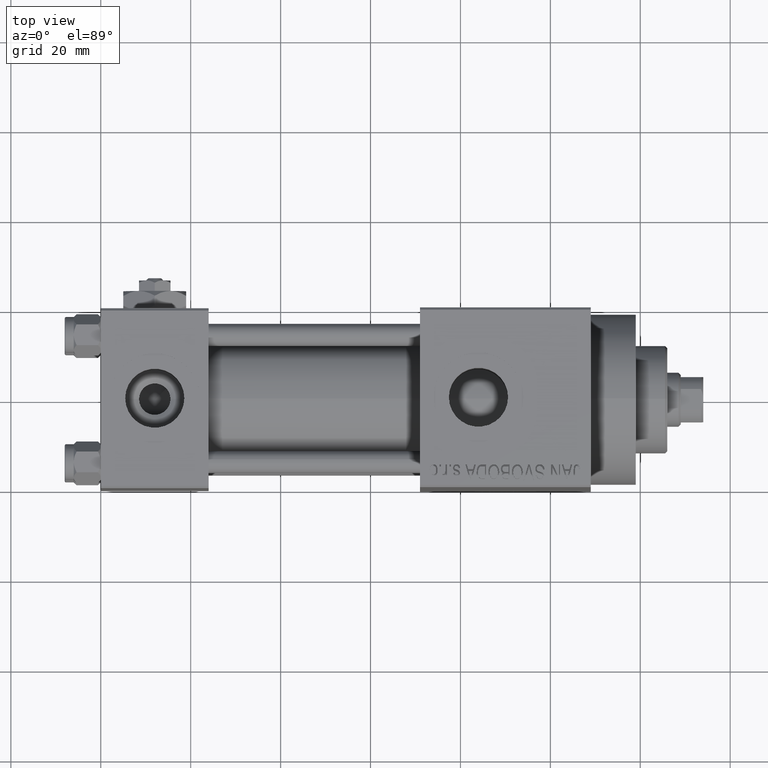
[diagram: clean part render]
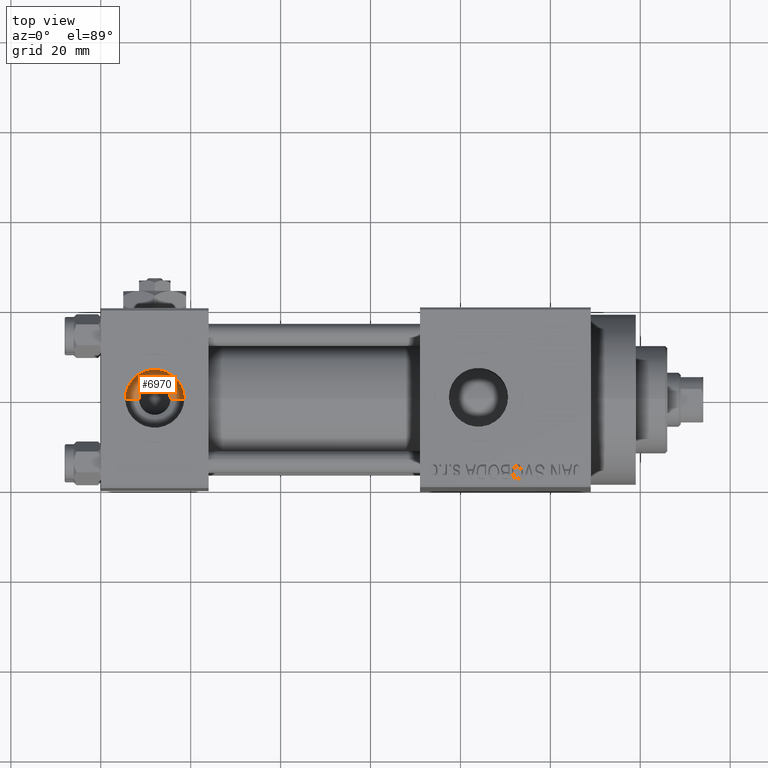
[diagram: same view with one face highlighted and labeled with its STEP entity id]
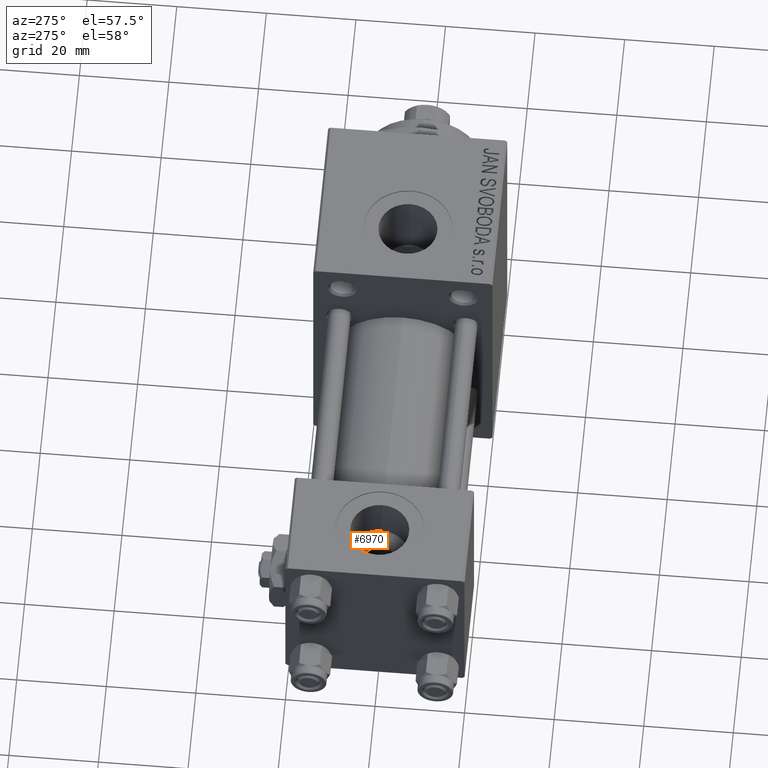
[diagram: same view with one face highlighted and labeled with its STEP entity id]
A machine part, top view. The second image highlights one B-rep face of the part: STEP entity #6970.
A second angle (auxiliary view) of the same face is appended — the face is thin or edge-on in the first view.
In plain terms, the highlighted conical surface has half-angle 60.452 deg.
Its self-contained STEP definition (entity closure, byte-faithful):
#892 = AXIS2_PLACEMENT_3D ( 'NONE', #12400, #7974, #46201 ) ;
#3464 = CARTESIAN_POINT ( 'NONE',  ( 12.00000000000000000, 1.540743955509788682E-30, 7.419999999999996376 ) ) ;
#3781 = CARTESIAN_POINT ( 'NONE',  ( 8.500000000000000000, 4.286263797015752865E-16, 7.419999999999996376 ) ) ;
#3803 = VECTOR ( 'NONE', #42261, 1000.000000000000000 ) ;
#6970 = ADVANCED_FACE ( 'NONE', ( #11524 ), #26708, .F. ) ;
#7388 = CARTESIAN_POINT ( 'NONE',  ( 18.57999999999999829, 1.540743955509788682E-30, 9.165987261146492315 ) ) ;
#7974 = DIRECTION ( 'NONE',  ( -0.000000000000000000, -0.000000000000000000, -1.000000000000000000 ) ) ;
#7988 = CIRCLE ( 'NONE', #892, 6.579999999999999183 ) ;
#8462 = CARTESIAN_POINT ( 'NONE',  ( 15.50000000000000000, 1.540743955509788682E-30, 7.419999999999996376 ) ) ;
#9518 = EDGE_CURVE ( 'NONE', #20864, #23122, #29219, .T. ) ;
#11524 = FACE_OUTER_BOUND ( 'NONE', #12116, .T. ) ;
#12116 = EDGE_LOOP ( 'NONE', ( #44508, #20123, #40859, #24142 ) ) ;
#12400 = CARTESIAN_POINT ( 'NONE',  ( 12.00000000000000000, 1.540743955509788682E-30, 9.165987261146492315 ) ) ;
#15568 = VERTEX_POINT ( 'NONE', #34589 ) ;
#15702 = DIRECTION ( 'NONE',  ( 0.000000000000000000, 0.000000000000000000, 1.000000000000000000 ) ) ;
#17152 = VERTEX_POINT ( 'NONE', #3781 ) ;
#17390 = EDGE_CURVE ( 'NONE', #17152, #15568, #22241, .T. ) ;
#17418 = CIRCLE ( 'NONE', #19741, 3.499999999999999556 ) ;
#18296 = VECTOR ( 'NONE', #41971, 1000.000000000000000 ) ;
#19741 = AXIS2_PLACEMENT_3D ( 'NONE', #3464, #27191, #38231 ) ;
#20123 = ORIENTED_EDGE ( 'NONE', *, *, #28683, .F. ) ;
#20864 = VERTEX_POINT ( 'NONE', #22105 ) ;
#22105 = CARTESIAN_POINT ( 'NONE',  ( 15.50000000000000000, 1.540743955509788682E-30, 7.419999999999996376 ) ) ;
#22241 = LINE ( 'NONE', #37283, #18296 ) ;
#23122 = VERTEX_POINT ( 'NONE', #7388 ) ;
#24142 = ORIENTED_EDGE ( 'NONE', *, *, #30556, .F. ) ;
#26708 = CONICAL_SURFACE ( 'NONE', #29082, 3.499999999999999556, 1.055086625138361267 ) ;
#27191 = DIRECTION ( 'NONE',  ( 0.000000000000000000, 0.000000000000000000, 1.000000000000000000 ) ) ;
#28683 = EDGE_CURVE ( 'NONE', #20864, #17152, #17418, .T. ) ;
#29082 = AXIS2_PLACEMENT_3D ( 'NONE', #46304, #15702, #33961 ) ;
#29219 = LINE ( 'NONE', #8462, #3803 ) ;
#30556 = EDGE_CURVE ( 'NONE', #15568, #23122, #7988, .T. ) ;
#33961 = DIRECTION ( 'NONE',  ( 1.000000000000000000, 0.000000000000000000, 0.000000000000000000 ) ) ;
#34589 = CARTESIAN_POINT ( 'NONE',  ( 5.420000000000000817, 8.058175938389596335E-16, 9.165987261146492315 ) ) ;
#37283 = CARTESIAN_POINT ( 'NONE',  ( 8.500000000000000000, 4.286263797015751879E-16, 7.419999999999996376 ) ) ;
#38231 = DIRECTION ( 'NONE',  ( 1.000000000000000000, 0.000000000000000000, 0.000000000000000000 ) ) ;
#40859 = ORIENTED_EDGE ( 'NONE', *, *, #9518, .T. ) ;
#41971 = DIRECTION ( 'NONE',  ( -0.8699429503561852961, 1.065372849594507103E-16, 0.4931523731318503412 ) ) ;
#42261 = DIRECTION ( 'NONE',  ( 0.8699429503561852961, 0.000000000000000000, 0.4931523731318503412 ) ) ;
#44508 = ORIENTED_EDGE ( 'NONE', *, *, #17390, .F. ) ;
#46201 = DIRECTION ( 'NONE',  ( 1.000000000000000000, 0.000000000000000000, 0.000000000000000000 ) ) ;
#46304 = CARTESIAN_POINT ( 'NONE',  ( 12.00000000000000000, 1.540743955509788682E-30, 7.419999999999996376 ) ) ;